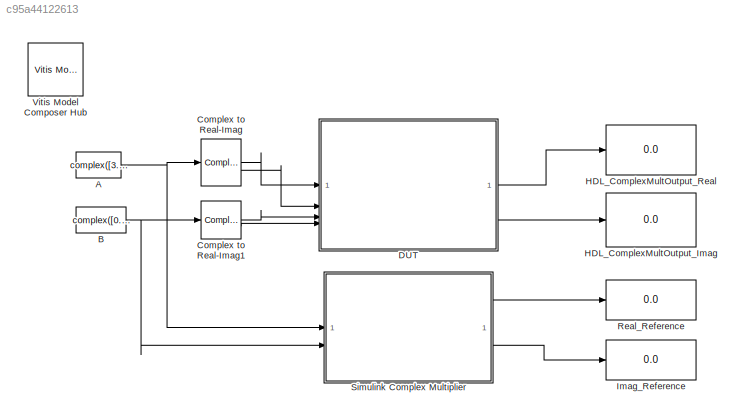
MODEL slx_c95a44122613
KIND model
CONFIG AbsTol = auto
CONFIG EnableMultiTasking = off
CONFIG FixedStep = auto
CONFIG MaxStep = auto
CONFIG MinStep = auto
CONFIG RelTol = 1e-3
CONFIG SampleTimeConstraint = Unconstrained
CONFIG SolverName = VariableStepAuto
CONFIG StartTime = 0.0
CONFIG StopTime = 10
BLOCK [Constant] A
  SampleTime = 1
  Value = complex([3.125 3.125],[1.2 1.2])
BLOCK [Constant] B
  SampleTime = 1
  Value = complex([0.12 0.12], [0.4 0.4])
BLOCK [ComplexToRealImag] Complex to Real-Imag
BLOCK [ComplexToRealImag] Complex to Real-Imag1
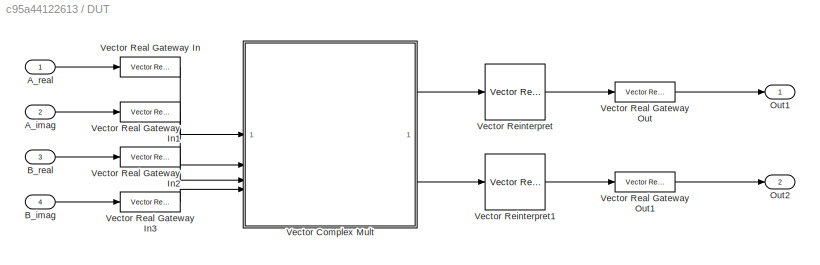
BLOCK [SubSystem] DUT
BLOCK [Inport] DUT/A_imag
  Port = 2
BLOCK [Inport] DUT/A_real
BLOCK [Inport] DUT/B_imag
  Port = 4
BLOCK [Inport] DUT/B_real
  Port = 3
BLOCK [Outport] DUT/Out1
BLOCK [Outport] DUT/Out2
  Port = 2
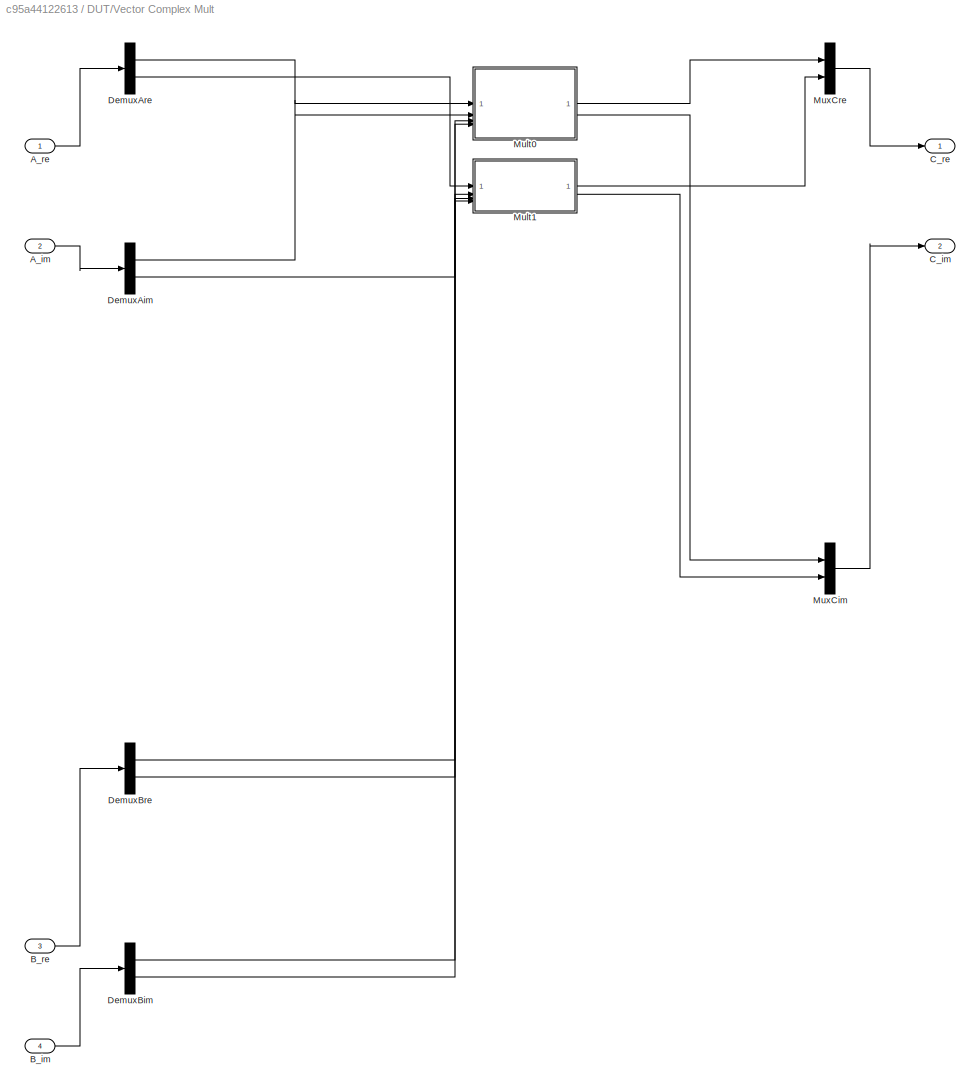
BLOCK [SubSystem] DUT/Vector Complex Mult
  LoadFcn = obj = XmcLoadGUI(gcbh); obj.loadGUI();
  MaskHideContents = on
BLOCK [Inport] DUT/Vector Complex Mult/A_im
  Port = 2
BLOCK [Inport] DUT/Vector Complex Mult/A_re
BLOCK [Inport] DUT/Vector Complex Mult/B_im
  Port = 4
BLOCK [Inport] DUT/Vector Complex Mult/B_re
  Port = 3
BLOCK [Outport] DUT/Vector Complex Mult/C_im
  Port = 2
  VectorParamsAs1DForOutWhenUnconnected = off
BLOCK [Outport] DUT/Vector Complex Mult/C_re
  VectorParamsAs1DForOutWhenUnconnected = off
BLOCK [Demux] DUT/Vector Complex Mult/DemuxAim
  Outputs = 2
BLOCK [Demux] DUT/Vector Complex Mult/DemuxAre
  Outputs = 2
BLOCK [Demux] DUT/Vector Complex Mult/DemuxBim
  Outputs = 2
BLOCK [Demux] DUT/Vector Complex Mult/DemuxBre
  Outputs = 2
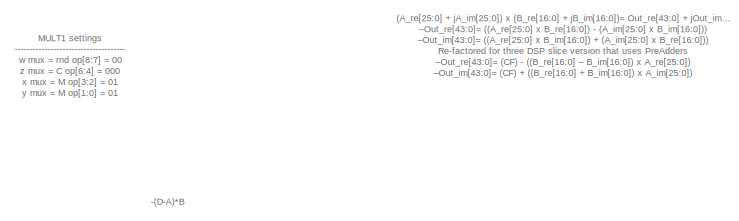
[diagram: DUT/Vector Complex Mult/Mult0 - part 1/3, top center region]
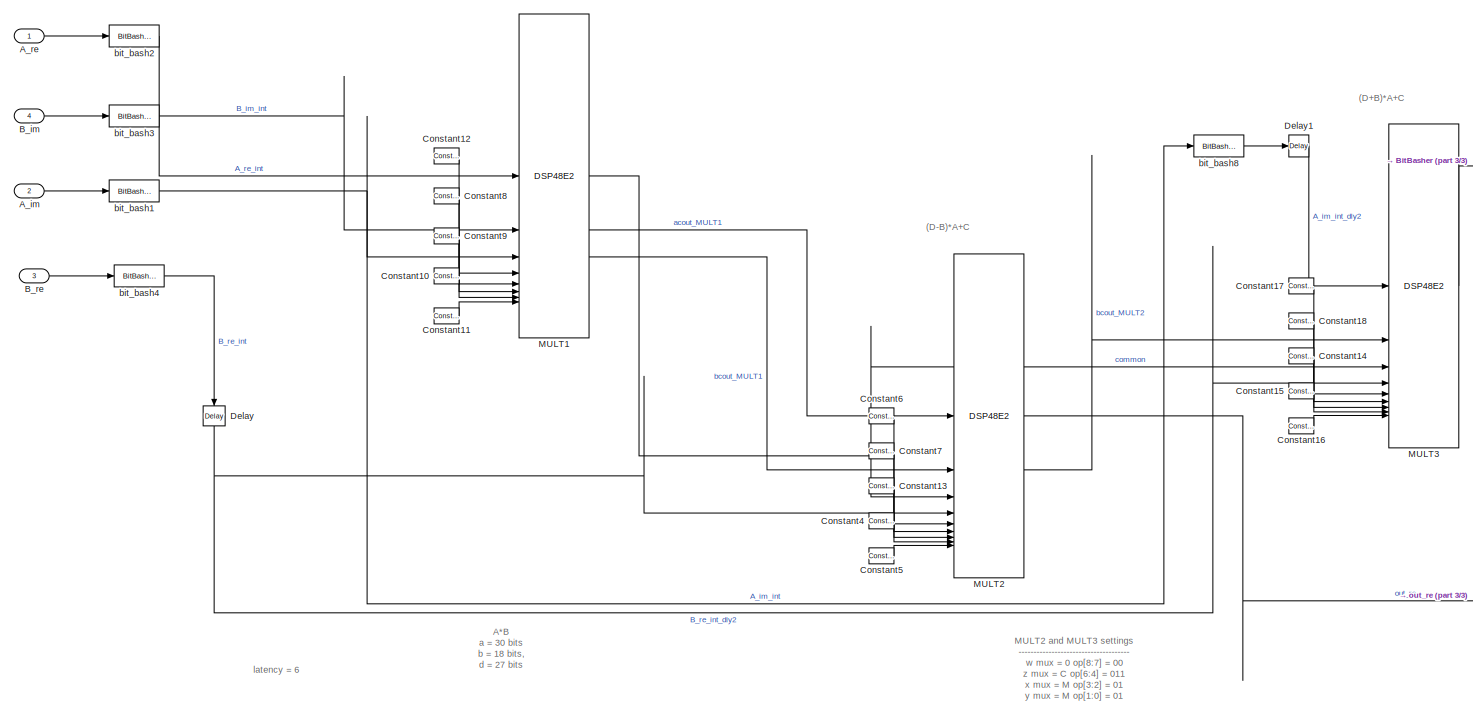
[diagram: DUT/Vector Complex Mult/Mult0 - part 2/3, most of the canvas]
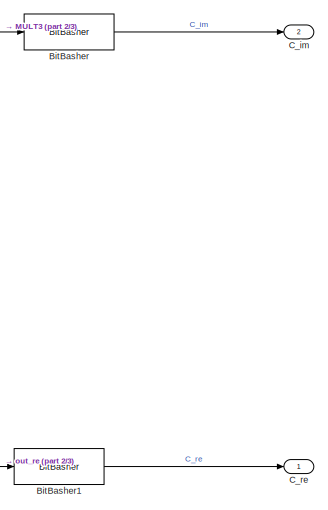
[diagram: DUT/Vector Complex Mult/Mult0 - part 3/3, middle right region]
BLOCK [SubSystem] DUT/Vector Complex Mult/Mult0
BLOCK [Inport] DUT/Vector Complex Mult/Mult0/A_im
  Port = 2
BLOCK [Inport] DUT/Vector Complex Mult/Mult0/A_re
BLOCK [Inport] DUT/Vector Complex Mult/Mult0/B_im
  Port = 4
BLOCK [Inport] DUT/Vector Complex Mult/Mult0/B_re
  Port = 3
BLOCK [Reference] DUT/Vector Complex Mult/Mult0/BitBasher  REF=hdlBasic/BitBasher
  SourceBlock = hdlBasic/BitBasher
  SourceType = BitBasher Block
BLOCK [Reference] DUT/Vector Complex Mult/Mult0/BitBasher1  REF=hdlBasic/BitBasher
  SourceBlock = hdlBasic/BitBasher
  SourceType = BitBasher Block
BLOCK [Outport] DUT/Vector Complex Mult/Mult0/C_im
  Port = 2
  VectorParamsAs1DForOutWhenUnconnected = off
BLOCK [Outport] DUT/Vector Complex Mult/Mult0/C_re
  VectorParamsAs1DForOutWhenUnconnected = off
BLOCK [Reference] DUT/Vector Complex Mult/Mult0/Constant10  REF=hdlBasic/Constant
  SourceBlock = hdlBasic/Constant
  SourceType = Constant Block Block
BLOCK [Reference] DUT/Vector Complex Mult/Mult0/Constant11  REF=hdlBasic/Constant
  SourceBlock = hdlBasic/Constant
  SourceType = Constant Block Block
BLOCK [Reference] DUT/Vector Complex Mult/Mult0/Constant12  REF=hdlBasic/Constant
  SourceBlock = hdlBasic/Constant
  SourceType = Constant Block Block
BLOCK [Reference] DUT/Vector Complex Mult/Mult0/Constant13  REF=hdlBasic/Constant
  SourceBlock = hdlBasic/Constant
  SourceType = Constant Block Block
BLOCK [Reference] DUT/Vector Complex Mult/Mult0/Constant14  REF=hdlBasic/Constant
  SourceBlock = hdlBasic/Constant
  SourceType = Constant Block Block
BLOCK [Reference] DUT/Vector Complex Mult/Mult0/Constant15  REF=hdlBasic/Constant
  SourceBlock = hdlBasic/Constant
  SourceType = Constant Block Block
BLOCK [Reference] DUT/Vector Complex Mult/Mult0/Constant16  REF=hdlBasic/Constant
  SourceBlock = hdlBasic/Constant
  SourceType = Constant Block Block
BLOCK [Reference] DUT/Vector Complex Mult/Mult0/Constant17  REF=hdlBasic/Constant
  SourceBlock = hdlBasic/Constant
  SourceType = Constant Block Block
BLOCK [Reference] DUT/Vector Complex Mult/Mult0/Constant18  REF=hdlBasic/Constant
  SourceBlock = hdlBasic/Constant
  SourceType = Constant Block Block
BLOCK [Reference] DUT/Vector Complex Mult/Mult0/Constant4  REF=hdlBasic/Constant
  SourceBlock = hdlBasic/Constant
  SourceType = Constant Block Block
BLOCK [Reference] DUT/Vector Complex Mult/Mult0/Constant5  REF=hdlBasic/Constant
  SourceBlock = hdlBasic/Constant
  SourceType = Constant Block Block
BLOCK [Reference] DUT/Vector Complex Mult/Mult0/Constant6  REF=hdlBasic/Constant
  SourceBlock = hdlBasic/Constant
  SourceType = Constant Block Block
BLOCK [Reference] DUT/Vector Complex Mult/Mult0/Constant7  REF=hdlBasic/Constant
  SourceBlock = hdlBasic/Constant
  SourceType = Constant Block Block
BLOCK [Reference] DUT/Vector Complex Mult/Mult0/Constant8  REF=hdlBasic/Constant
  SourceBlock = hdlBasic/Constant
  SourceType = Constant Block Block
BLOCK [Reference] DUT/Vector Complex Mult/Mult0/Constant9  REF=hdlBasic/Constant
  SourceBlock = hdlBasic/Constant
  SourceType = Constant Block Block
BLOCK [Reference] DUT/Vector Complex Mult/Mult0/Delay  REF=hdlBasic/Delay
  NameLocation = left
  SourceBlock = hdlBasic/Delay
  SourceType = Delay Block
BLOCK [Reference] DUT/Vector Complex Mult/Mult0/Delay1  REF=hdlBasic/Delay
  SourceBlock = hdlBasic/Delay
  SourceType = Delay Block
BLOCK [Reference] DUT/Vector Complex Mult/Mult0/MULT1  REF=hdlBasic/DSP48E2 
  SourceBlock = hdlBasic/DSP48E2
  SourceType = DSP48E2 Block
BLOCK [Reference] DUT/Vector Complex Mult/Mult0/MULT2  REF=hdlBasic/DSP48E2 
  SourceBlock = hdlBasic/DSP48E2
  SourceType = DSP48E2 Block
BLOCK [Reference] DUT/Vector Complex Mult/Mult0/MULT3  REF=hdlBasic/DSP48E2 
  SourceBlock = hdlBasic/DSP48E2
  SourceType = DSP48E2 Block
BLOCK [Reference] DUT/Vector Complex Mult/Mult0/bit_bash1  REF=hdlBasic/BitBasher
  SourceBlock = hdlBasic/BitBasher
  SourceType = BitBasher Block
BLOCK [Reference] DUT/Vector Complex Mult/Mult0/bit_bash2  REF=hdlBasic/BitBasher
  SourceBlock = hdlBasic/BitBasher
  SourceType = BitBasher Block
BLOCK [Reference] DUT/Vector Complex Mult/Mult0/bit_bash3  REF=hdlBasic/BitBasher
  SourceBlock = hdlBasic/BitBasher
  SourceType = BitBasher Block
BLOCK [Reference] DUT/Vector Complex Mult/Mult0/bit_bash4  REF=hdlBasic/BitBasher
  SourceBlock = hdlBasic/BitBasher
  SourceType = BitBasher Block
BLOCK [Reference] DUT/Vector Complex Mult/Mult0/bit_bash8  REF=hdlBasic/BitBasher
  SourceBlock = hdlBasic/BitBasher
  SourceType = BitBasher Block
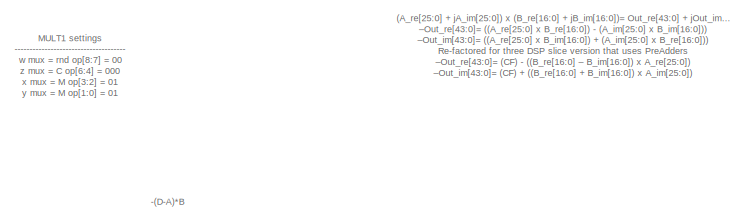
[diagram: DUT/Vector Complex Mult/Mult1 - part 1/3, top center region]
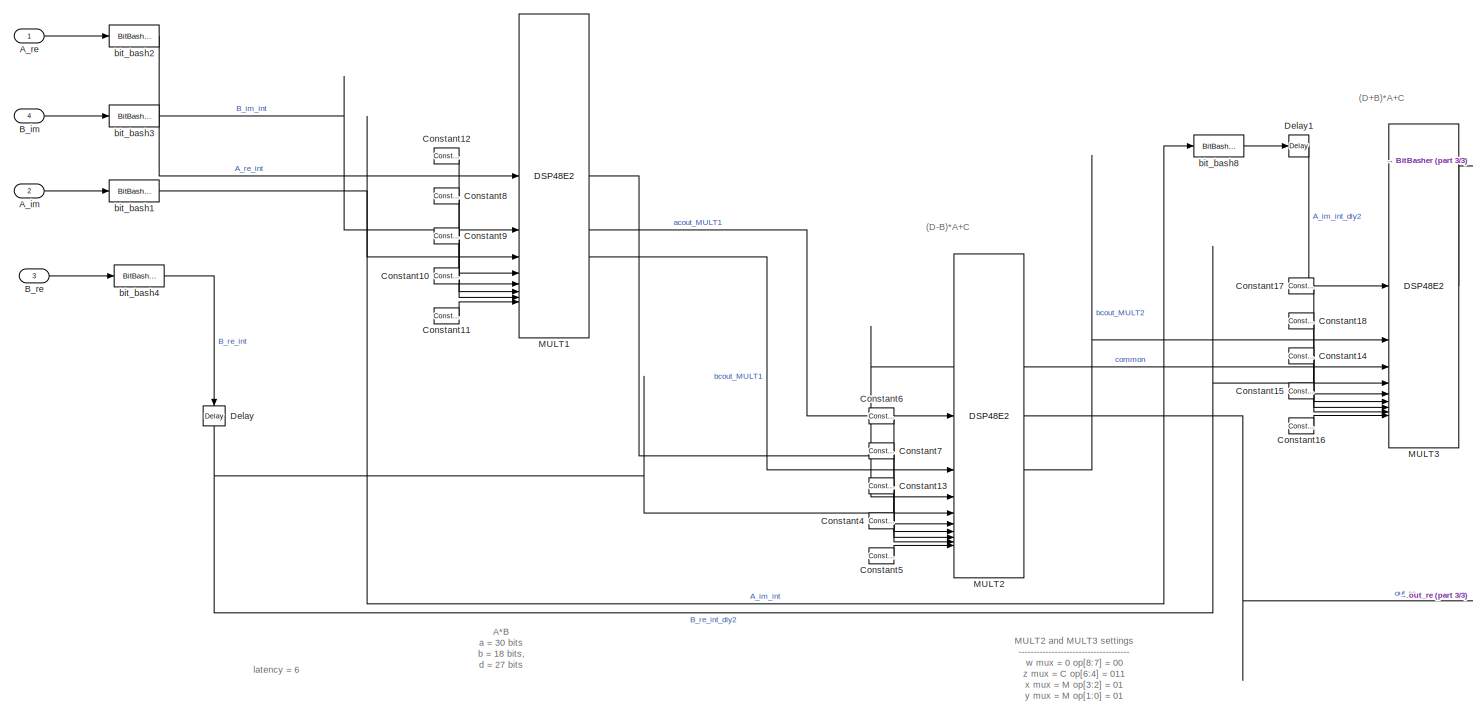
[diagram: DUT/Vector Complex Mult/Mult1 - part 2/3, most of the canvas]
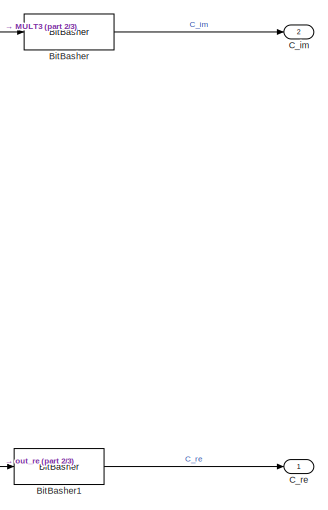
[diagram: DUT/Vector Complex Mult/Mult1 - part 3/3, middle right region]
BLOCK [SubSystem] DUT/Vector Complex Mult/Mult1
BLOCK [Inport] DUT/Vector Complex Mult/Mult1/A_im
  Port = 2
BLOCK [Inport] DUT/Vector Complex Mult/Mult1/A_re
BLOCK [Inport] DUT/Vector Complex Mult/Mult1/B_im
  Port = 4
BLOCK [Inport] DUT/Vector Complex Mult/Mult1/B_re
  Port = 3
BLOCK [Reference] DUT/Vector Complex Mult/Mult1/BitBasher  REF=hdlBasic/BitBasher
  SourceBlock = hdlBasic/BitBasher
  SourceType = BitBasher Block
BLOCK [Reference] DUT/Vector Complex Mult/Mult1/BitBasher1  REF=hdlBasic/BitBasher
  SourceBlock = hdlBasic/BitBasher
  SourceType = BitBasher Block
BLOCK [Outport] DUT/Vector Complex Mult/Mult1/C_im
  Port = 2
  VectorParamsAs1DForOutWhenUnconnected = off
BLOCK [Outport] DUT/Vector Complex Mult/Mult1/C_re
  VectorParamsAs1DForOutWhenUnconnected = off
BLOCK [Reference] DUT/Vector Complex Mult/Mult1/Constant10  REF=hdlBasic/Constant
  SourceBlock = hdlBasic/Constant
  SourceType = Constant Block Block
BLOCK [Reference] DUT/Vector Complex Mult/Mult1/Constant11  REF=hdlBasic/Constant
  SourceBlock = hdlBasic/Constant
  SourceType = Constant Block Block
BLOCK [Reference] DUT/Vector Complex Mult/Mult1/Constant12  REF=hdlBasic/Constant
  SourceBlock = hdlBasic/Constant
  SourceType = Constant Block Block
BLOCK [Reference] DUT/Vector Complex Mult/Mult1/Constant13  REF=hdlBasic/Constant
  SourceBlock = hdlBasic/Constant
  SourceType = Constant Block Block
BLOCK [Reference] DUT/Vector Complex Mult/Mult1/Constant14  REF=hdlBasic/Constant
  SourceBlock = hdlBasic/Constant
  SourceType = Constant Block Block
BLOCK [Reference] DUT/Vector Complex Mult/Mult1/Constant15  REF=hdlBasic/Constant
  SourceBlock = hdlBasic/Constant
  SourceType = Constant Block Block
BLOCK [Reference] DUT/Vector Complex Mult/Mult1/Constant16  REF=hdlBasic/Constant
  SourceBlock = hdlBasic/Constant
  SourceType = Constant Block Block
BLOCK [Reference] DUT/Vector Complex Mult/Mult1/Constant17  REF=hdlBasic/Constant
  SourceBlock = hdlBasic/Constant
  SourceType = Constant Block Block
BLOCK [Reference] DUT/Vector Complex Mult/Mult1/Constant18  REF=hdlBasic/Constant
  SourceBlock = hdlBasic/Constant
  SourceType = Constant Block Block
BLOCK [Reference] DUT/Vector Complex Mult/Mult1/Constant4  REF=hdlBasic/Constant
  SourceBlock = hdlBasic/Constant
  SourceType = Constant Block Block
BLOCK [Reference] DUT/Vector Complex Mult/Mult1/Constant5  REF=hdlBasic/Constant
  SourceBlock = hdlBasic/Constant
  SourceType = Constant Block Block
BLOCK [Reference] DUT/Vector Complex Mult/Mult1/Constant6  REF=hdlBasic/Constant
  SourceBlock = hdlBasic/Constant
  SourceType = Constant Block Block
BLOCK [Reference] DUT/Vector Complex Mult/Mult1/Constant7  REF=hdlBasic/Constant
  SourceBlock = hdlBasic/Constant
  SourceType = Constant Block Block
BLOCK [Reference] DUT/Vector Complex Mult/Mult1/Constant8  REF=hdlBasic/Constant
  SourceBlock = hdlBasic/Constant
  SourceType = Constant Block Block
BLOCK [Reference] DUT/Vector Complex Mult/Mult1/Constant9  REF=hdlBasic/Constant
  SourceBlock = hdlBasic/Constant
  SourceType = Constant Block Block
BLOCK [Reference] DUT/Vector Complex Mult/Mult1/Delay  REF=hdlBasic/Delay
  NameLocation = left
  SourceBlock = hdlBasic/Delay
  SourceType = Delay Block
BLOCK [Reference] DUT/Vector Complex Mult/Mult1/Delay1  REF=hdlBasic/Delay
  SourceBlock = hdlBasic/Delay
  SourceType = Delay Block
BLOCK [Reference] DUT/Vector Complex Mult/Mult1/MULT1  REF=hdlBasic/DSP48E2 
  SourceBlock = hdlBasic/DSP48E2
  SourceType = DSP48E2 Block
BLOCK [Reference] DUT/Vector Complex Mult/Mult1/MULT2  REF=hdlBasic/DSP48E2 
  SourceBlock = hdlBasic/DSP48E2
  SourceType = DSP48E2 Block
BLOCK [Reference] DUT/Vector Complex Mult/Mult1/MULT3  REF=hdlBasic/DSP48E2 
  SourceBlock = hdlBasic/DSP48E2
  SourceType = DSP48E2 Block
BLOCK [Reference] DUT/Vector Complex Mult/Mult1/bit_bash1  REF=hdlBasic/BitBasher
  SourceBlock = hdlBasic/BitBasher
  SourceType = BitBasher Block
BLOCK [Reference] DUT/Vector Complex Mult/Mult1/bit_bash2  REF=hdlBasic/BitBasher
  SourceBlock = hdlBasic/BitBasher
  SourceType = BitBasher Block
BLOCK [Reference] DUT/Vector Complex Mult/Mult1/bit_bash3  REF=hdlBasic/BitBasher
  SourceBlock = hdlBasic/BitBasher
  SourceType = BitBasher Block
BLOCK [Reference] DUT/Vector Complex Mult/Mult1/bit_bash4  REF=hdlBasic/BitBasher
  SourceBlock = hdlBasic/BitBasher
  SourceType = BitBasher Block
BLOCK [Reference] DUT/Vector Complex Mult/Mult1/bit_bash8  REF=hdlBasic/BitBasher
  SourceBlock = hdlBasic/BitBasher
  SourceType = BitBasher Block
BLOCK [Mux] DUT/Vector Complex Mult/MuxCim
  DisplayOption = bar
  Inputs = 2
BLOCK [Mux] DUT/Vector Complex Mult/MuxCre
  DisplayOption = bar
  Inputs = 2
BLOCK [Reference] DUT/Vector Real Gateway In  REF=hdlSSR/Vector Real Gateway In
  SourceBlock = hdlSSR/Vector Real Gateway In
  SourceType = Xilinx Vector Gateway In Block
BLOCK [Reference] DUT/Vector Real Gateway In1  REF=hdlSSR/Vector Real Gateway In
  SourceBlock = hdlSSR/Vector Real Gateway In
  SourceType = Xilinx Vector Gateway In Block
BLOCK [Reference] DUT/Vector Real Gateway In2  REF=hdlSSR/Vector Real Gateway In
  SourceBlock = hdlSSR/Vector Real Gateway In
  SourceType = Xilinx Vector Gateway In Block
BLOCK [Reference] DUT/Vector Real Gateway In3  REF=hdlSSR/Vector Real Gateway In
  SourceBlock = hdlSSR/Vector Real Gateway In
  SourceType = Xilinx Vector Gateway In Block
BLOCK [Reference] DUT/Vector Real Gateway Out  REF=hdlSSR/Vector Real Gateway Out
  SourceBlock = hdlSSR/Vector Real Gateway Out
  SourceType = Xilinx Vector Gateway Out Block
BLOCK [Reference] DUT/Vector Real Gateway Out1  REF=hdlSSR/Vector Real Gateway Out
  SourceBlock = hdlSSR/Vector Real Gateway Out
  SourceType = Xilinx Vector Gateway Out Block
BLOCK [Reference] DUT/Vector Reinterpret  REF=hdlSSR/Vector Reinterpret
  SourceBlock = hdlSSR/Vector Reinterpret
  SourceType = Xilinx Vector Type Reinterpreter Block
BLOCK [Reference] DUT/Vector Reinterpret1  REF=hdlSSR/Vector Reinterpret
  SourceBlock = hdlSSR/Vector Reinterpret
  SourceType = Xilinx Vector Type Reinterpreter Block
BLOCK [Display] HDL_ComplexMultOutput_Imag
  Decimation = 1
  Format = long
BLOCK [Display] HDL_ComplexMultOutput_Real
  Decimation = 1
BLOCK [Display] Imag_Reference
  Decimation = 1
BLOCK [Display] Real_Reference
  Decimation = 1
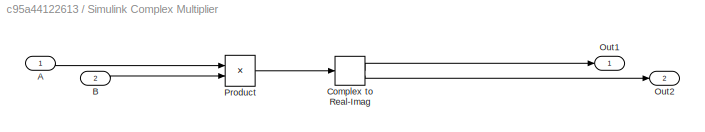
BLOCK [SubSystem] Simulink Complex Multiplier
BLOCK [Inport] Simulink Complex Multiplier/A
BLOCK [Inport] Simulink Complex Multiplier/B
  Port = 2
BLOCK [ComplexToRealImag] Simulink Complex Multiplier/Complex to Real-Imag
BLOCK [Outport] Simulink Complex Multiplier/Out1
BLOCK [Outport] Simulink Complex Multiplier/Out2
  Port = 2
BLOCK [Product] Simulink Complex Multiplier/Product
BLOCK [Reference] Vitis Model Composer Hub  REF=vmcUtilities/Vitis Model Composer Hub
  SourceBlock = vmcUtilities/Vitis Model Composer Hub
  SourceType = VMC Hub
  Tag = genX
  UserDataPersistent = on
ANNOTATION DUT/Vector Complex Mult/Mult0: (A_re[25:0] + jA_im[25:0]) x (B_re[16:0] + jB_im[16:0])= Out_re[43:0] + jOut_im[43:0] –Out_re[43:0]= ((A_re[25:0] x B_re[16:0]) - (A_im[25:0] x B_im[16:0])) –Out_im[43:0]= ((A_re[25:0] x B_im[16:0]) + (A_im[25:0] x B_re[16:0])) Re-factored for three DSP slice version that uses PreAdders –Out_re[43:0]= (CF) - ((B_re[16:0] – B_im[16:0]) x A_re[25:0]) –Out_im[43:0]= (CF) + ((B_re[16:0] + B_im[16:0]) ...<+87ch>
ANNOTATION DUT/Vector Complex Mult/Mult0: A*B a = 30 bits b = 18 bits, d = 27 bits
ANNOTATION DUT/Vector Complex Mult/Mult0: latency = 6
ANNOTATION DUT/Vector Complex Mult/Mult0: (D+B)*A+C
ANNOTATION DUT/Vector Complex Mult/Mult0: (D-B)*A+C
ANNOTATION DUT/Vector Complex Mult/Mult0: -(D-A)*B
ANNOTATION DUT/Vector Complex Mult/Mult0: MULT2 and MULT3 settings ------------------------------------- w mux = 0 op[8:7] = 00 z mux = C op[6:4] = 011 x mux = M op[3:2] = 01 y mux = M op[1:0] = 01 carryinsel = 000 inmode = bin2dec('00100') (D+B) vs bin2dec('01100') (D-B); inmode[4]=0 for B2 selection; inmode[3]=0 preadd; inmode[0]=0 A2 alumode = bin2dec('0000') (Z+W+X+Y+CIN)
ANNOTATION DUT/Vector Complex Mult/Mult0: MULT1 settings ------------------------------------- w mux = rnd op[8:7] = 00 z mux = C op[6:4] = 000 x mux = M op[3:2] = 01 y mux = M op[1:0] = 01 carryinsel = 000 inmode = bin2dec('01101') (D-A) inmode[4]=0 for B2 selection; inmode[3]=0 preadd; inmode[0]=0 A2 alumode = bin2dec('0011') Z-(W+X+Y+CIN)
ANNOTATION DUT/Vector Complex Mult/Mult1: (A_re[25:0] + jA_im[25:0]) x (B_re[16:0] + jB_im[16:0])= Out_re[43:0] + jOut_im[43:0] –Out_re[43:0]= ((A_re[25:0] x B_re[16:0]) - (A_im[25:0] x B_im[16:0])) –Out_im[43:0]= ((A_re[25:0] x B_im[16:0]) + (A_im[25:0] x B_re[16:0])) Re-factored for three DSP slice version that uses PreAdders –Out_re[43:0]= (CF) - ((B_re[16:0] – B_im[16:0]) x A_re[25:0]) –Out_im[43:0]= (CF) + ((B_re[16:0] + B_im[16:0]) ...<+87ch>
ANNOTATION DUT/Vector Complex Mult/Mult1: A*B a = 30 bits b = 18 bits, d = 27 bits
ANNOTATION DUT/Vector Complex Mult/Mult1: latency = 6
ANNOTATION DUT/Vector Complex Mult/Mult1: (D+B)*A+C
ANNOTATION DUT/Vector Complex Mult/Mult1: (D-B)*A+C
ANNOTATION DUT/Vector Complex Mult/Mult1: -(D-A)*B
ANNOTATION DUT/Vector Complex Mult/Mult1: MULT2 and MULT3 settings ------------------------------------- w mux = 0 op[8:7] = 00 z mux = C op[6:4] = 011 x mux = M op[3:2] = 01 y mux = M op[1:0] = 01 carryinsel = 000 inmode = bin2dec('00100') (D+B) vs bin2dec('01100') (D-B); inmode[4]=0 for B2 selection; inmode[3]=0 preadd; inmode[0]=0 A2 alumode = bin2dec('0000') (Z+W+X+Y+CIN)
ANNOTATION DUT/Vector Complex Mult/Mult1: MULT1 settings ------------------------------------- w mux = rnd op[8:7] = 00 z mux = C op[6:4] = 000 x mux = M op[3:2] = 01 y mux = M op[1:0] = 01 carryinsel = 000 inmode = bin2dec('01101') (D-A) inmode[4]=0 for B2 selection; inmode[3]=0 preadd; inmode[0]=0 A2 alumode = bin2dec('0011') Z-(W+X+Y+CIN)
NET A:1 -> Complex to Real-Imag:1, Simulink Complex Multiplier:1
NET B:1 -> Complex to Real-Imag1:1, Simulink Complex Multiplier:2
LINE Complex to Real-Imag1:1 -> DUT:3
LINE Complex to Real-Imag1:2 -> DUT:4
LINE Complex to Real-Imag:1 -> DUT:1
LINE Complex to Real-Imag:2 -> DUT:2
LINE DUT/A_imag:1 -> DUT/Vector Real Gateway In1:1
LINE DUT/A_real:1 -> DUT/Vector Real Gateway In:1
LINE DUT/B_imag:1 -> DUT/Vector Real Gateway In3:1
LINE DUT/B_real:1 -> DUT/Vector Real Gateway In2:1
LINE DUT/Vector Complex Mult:1 -> DUT/Vector Reinterpret:1
LINE DUT/Vector Complex Mult:2 -> DUT/Vector Reinterpret1:1
LINE DUT/Vector Real Gateway In1:1 -> DUT/Vector Complex Mult:2
LINE DUT/Vector Real Gateway In2:1 -> DUT/Vector Complex Mult:3
LINE DUT/Vector Real Gateway In3:1 -> DUT/Vector Complex Mult:4
LINE DUT/Vector Real Gateway In:1 -> DUT/Vector Complex Mult:1
LINE DUT/Vector Real Gateway Out1:1 -> DUT/Out2:1
LINE DUT/Vector Real Gateway Out:1 -> DUT/Out1:1
LINE DUT/Vector Reinterpret1:1 -> DUT/Vector Real Gateway Out1:1
LINE DUT/Vector Reinterpret:1 -> DUT/Vector Real Gateway Out:1
LINE DUT:1 -> HDL_ComplexMultOutput_Real:1
LINE DUT:2 -> HDL_ComplexMultOutput_Imag:1
LINE Simulink Complex Multiplier/A:1 -> Simulink Complex Multiplier/Product:1
LINE Simulink Complex Multiplier/B:1 -> Simulink Complex Multiplier/Product:2
LINE Simulink Complex Multiplier/Complex to Real-Imag:1 -> Simulink Complex Multiplier/Out1:1
LINE Simulink Complex Multiplier/Complex to Real-Imag:2 -> Simulink Complex Multiplier/Out2:1
LINE Simulink Complex Multiplier/Product:1 -> Simulink Complex Multiplier/Complex to Real-Imag:1
LINE Simulink Complex Multiplier:1 -> Real_Reference:1
LINE Simulink Complex Multiplier:2 -> Imag_Reference:1
note: NET lines group one-source signal fan-out (src -> all destinations, sorted); 1:1 wires keep LINE
